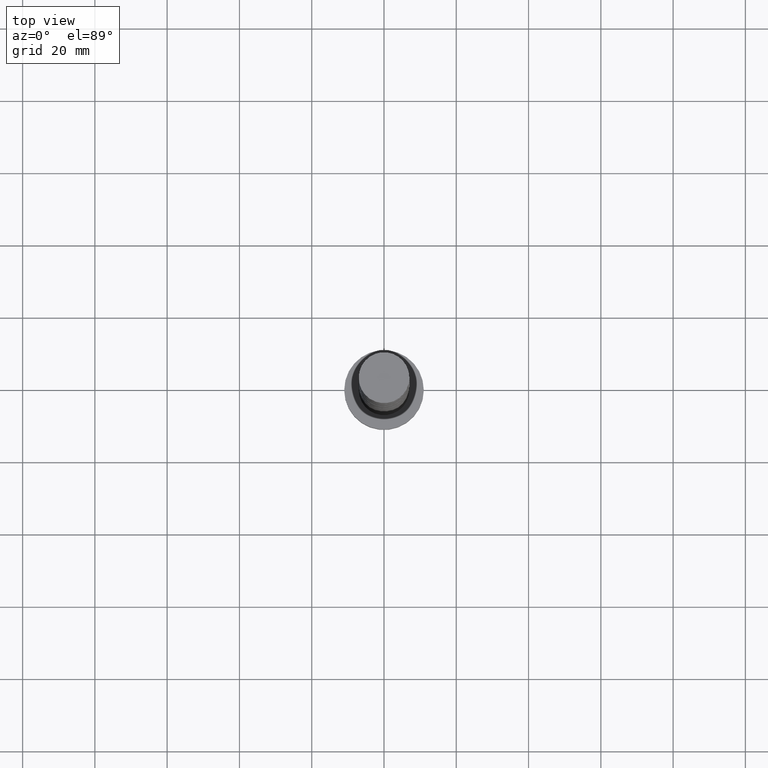
[diagram: clean part render]
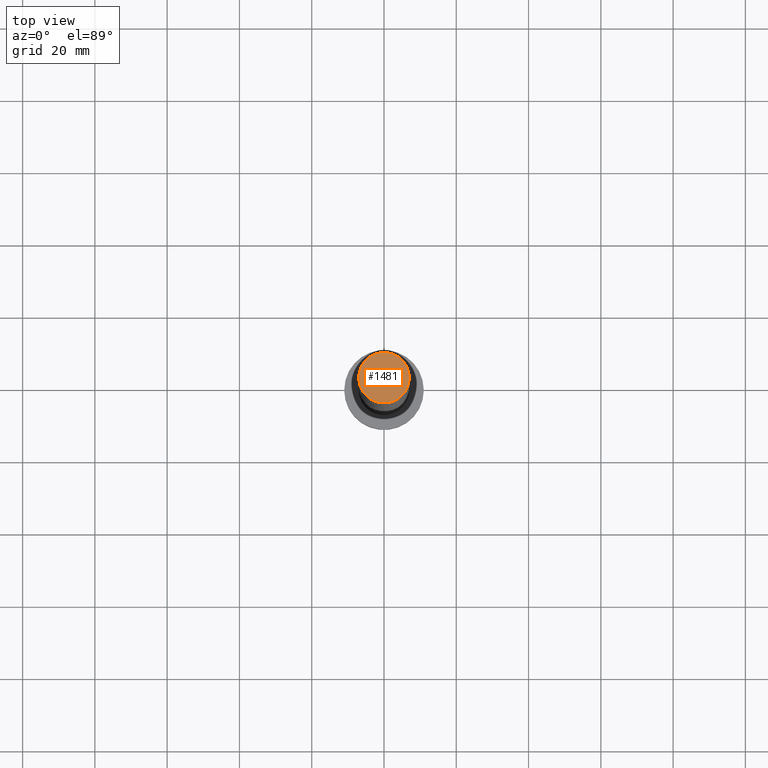
[diagram: same view with one face highlighted and labeled with its STEP entity id]
A machine part, top view. The second image highlights one B-rep face of the part: STEP entity #1481.
In plain terms, the highlighted planar face has unit normal (0, 0, 1).
Its self-contained STEP definition (entity closure, byte-faithful):
#51 = DIRECTION ( 'NONE',  ( 1.000000000000000000, 0.000000000000000000, 0.000000000000000000 ) ) ;
#79 = EDGE_CURVE ( 'NONE', #755, #898, #1097, .T. ) ;
#119 = DIRECTION ( 'NONE',  ( 1.000000000000000000, 0.000000000000000000, -0.000000000000000000 ) ) ;
#157 = AXIS2_PLACEMENT_3D ( 'NONE', #1144, #437, #715 ) ;
#310 = AXIS2_PLACEMENT_3D ( 'NONE', #1475, #801, #119 ) ;
#385 = FACE_OUTER_BOUND ( 'NONE', #497, .T. ) ;
#437 = DIRECTION ( 'NONE',  ( 0.000000000000000000, 0.000000000000000000, 1.000000000000000000 ) ) ;
#497 = EDGE_LOOP ( 'NONE', ( #1386, #807 ) ) ;
#564 = DIRECTION ( 'NONE',  ( 0.000000000000000000, 0.000000000000000000, 1.000000000000000000 ) ) ;
#715 = DIRECTION ( 'NONE',  ( 1.000000000000000000, 0.000000000000000000, 0.000000000000000000 ) ) ;
#720 = CARTESIAN_POINT ( 'NONE',  ( 0.000000000000000000, 0.000000000000000000, 200.0000000000000000 ) ) ;
#755 = VERTEX_POINT ( 'NONE', #1639 ) ;
#801 = DIRECTION ( 'NONE',  ( 0.000000000000000000, 0.000000000000000000, 1.000000000000000000 ) ) ;
#807 = ORIENTED_EDGE ( 'NONE', *, *, #79, .T. ) ;
#898 = VERTEX_POINT ( 'NONE', #1409 ) ;
#931 = PLANE ( 'NONE',  #310 ) ;
#1097 = CIRCLE ( 'NONE', #157, 7.000000000000000000 ) ;
#1144 = CARTESIAN_POINT ( 'NONE',  ( 0.000000000000000000, 0.000000000000000000, 200.0000000000000000 ) ) ;
#1386 = ORIENTED_EDGE ( 'NONE', *, *, #1624, .T. ) ;
#1409 = CARTESIAN_POINT ( 'NONE',  ( -7.000000000000000000, 0.000000000000000000, 200.0000000000000000 ) ) ;
#1475 = CARTESIAN_POINT ( 'NONE',  ( 0.000000000000000000, 0.000000000000000000, 200.0000000000000000 ) ) ;
#1481 = ADVANCED_FACE ( 'NONE', ( #385 ), #931, .T. ) ;
#1624 = EDGE_CURVE ( 'NONE', #898, #755, #1726, .T. ) ;
#1639 = CARTESIAN_POINT ( 'NONE',  ( 7.000000000000000000, 8.572527594031473190E-16, 200.0000000000000000 ) ) ;
#1697 = AXIS2_PLACEMENT_3D ( 'NONE', #720, #564, #51 ) ;
#1726 = CIRCLE ( 'NONE', #1697, 7.000000000000000000 ) ;